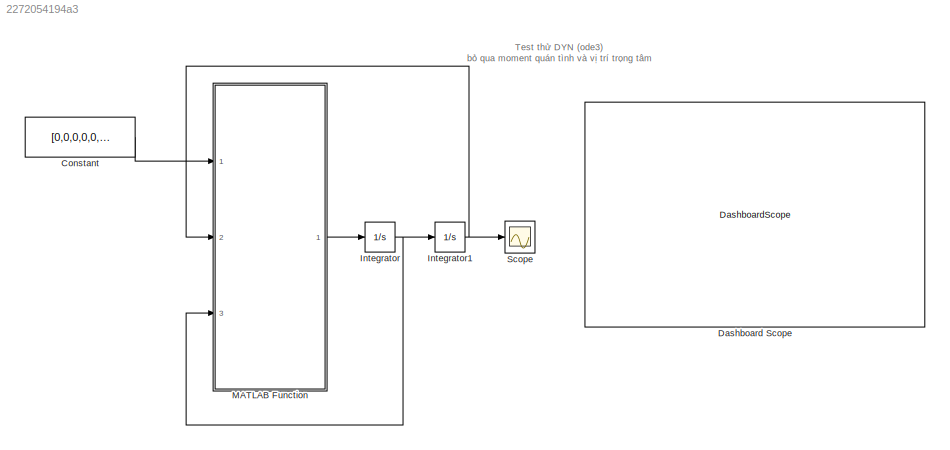
MODEL slx_2272054194a3
KIND model
CONFIG AbsTol = auto
CONFIG EnableMultiTasking = off
CONFIG FixedStep = 0.001
CONFIG MaxStep = auto
CONFIG MinStep = auto
CONFIG RelTol = 1e-3
CONFIG SampleTimeConstraint = Unconstrained
CONFIG SolverName = FixedStepAuto
CONFIG StartTime = 0.0
CONFIG StopTime = 50
BLOCK [Constant] Constant
  Value = [0,0,0,0,0,0]
BLOCK [DashboardScope] Dashboard Scope
BLOCK [Integrator] Integrator
  InitialCondition = [0.2;0.2;0.2;0.2;0.2;0.2]
  Ports = [1, 1]
BLOCK [Integrator] Integrator1
  InitialCondition = [0.1;0.1;0.1;0.1;0.1;0.1]
  Ports = [1, 1]
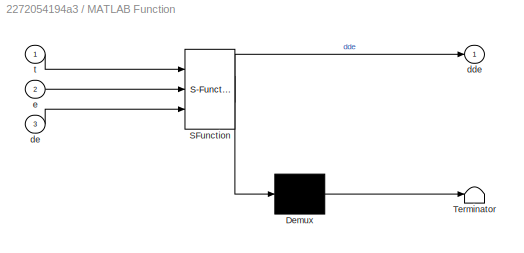
BLOCK [SubSystem] MATLAB Function
  ErrorFcn = Stateflow.Translate.translate
  PermitHierarchicalResolution = ExplicitOnly
  Ports = [3, 1]
  RequestExecContextInheritance = off
  SFBlockType = MATLAB Function
  TreatAsAtomicUnit = on
BLOCK [Demux] MATLAB Function/ Demux 
  Outputs = 1
  Ports = [1, 1]
BLOCK [S-Function] MATLAB Function/ SFunction 
  EnableBusSupport = on
  FunctionName = sf_sfun
  PortCounts = [3 2]
  Ports = [3, 2]
  SFcnIsStateOwnerBlock = off
  SFunctionDeploymentMode = off
  Tag = Stateflow S-Function 2
BLOCK [Terminator] MATLAB Function/ Terminator 
BLOCK [Outport] MATLAB Function/dde
BLOCK [Inport] MATLAB Function/de
  Port = 3
BLOCK [Inport] MATLAB Function/e
  Port = 2
BLOCK [Inport] MATLAB Function/t
BLOCK [Scope] Scope
  Floating = off
  NumInputPorts = 1
  Ports = [1]
  ScopeSpecificationString = Simulink.scopes.TimeScopeBlockCfg('CurrentConfiguration', extmgr.ConfigurationSet(extmgr.Configuration('Core','General UI',true),extmgr.Configuration('Core','Source UI',true),extmgr.Configuration('Sources','WiredSimulink',true,'DataLogging',true,'DataLoggingVariableName','d','DataLoggingSaveFormat','Structure'),extmgr.Configuration('Visuals','Time Domain',true,'SerializedDisplays',{struct('MinYLim...<+1550ch>
ANNOTATION (root): Test thử DYN (ode3) bỏ qua moment quán tình và vị trí trọng tâm
LINE Constant:1 -> MATLAB Function:1
NET Integrator1:1 -> MATLAB Function:2, Scope:1
NET Integrator:1 -> Integrator1:1, MATLAB Function:3
LINE MATLAB Function:1 -> Integrator:1
note: NET lines group one-source signal fan-out (src -> all destinations, sorted); 1:1 wires keep LINE
CHART MATLAB Function states=1 transitions=1
  STATE_LABEL 'eML_blk_kernel()'
  STATE_LABEL 'SCRIPT:\nfunction dde = fcn(t,e,de)\ne1 = e(1); e2 = e(2); e3 = e(3);\ne4 = e(4); e5 = e(5); e6 = e(6);\nde1 = de(1); de2 = de(2); de3 = de(3);\nde4 = de(4); de5 = de(5); de6 = de(6);\ng = 9.81;\na1=0.75; a2=2.70; a3=0.90; d1=3.35; d4=2.95; d7=0.80;\nI1=0; I2=0; I3=0; I4=0; I5=0; I6=0.1;\nm1 = 5.6511; m2 = 4.6061; m3 = 4.2963; m4 = 1.9151; m5 = 0.3399; m6 = 0.0714;\n\nM = [I1 + I2 + I3 + I4 + I5 + I6 + a1^2*...<+3608ch>'
CHART  states=0 transitions=0
